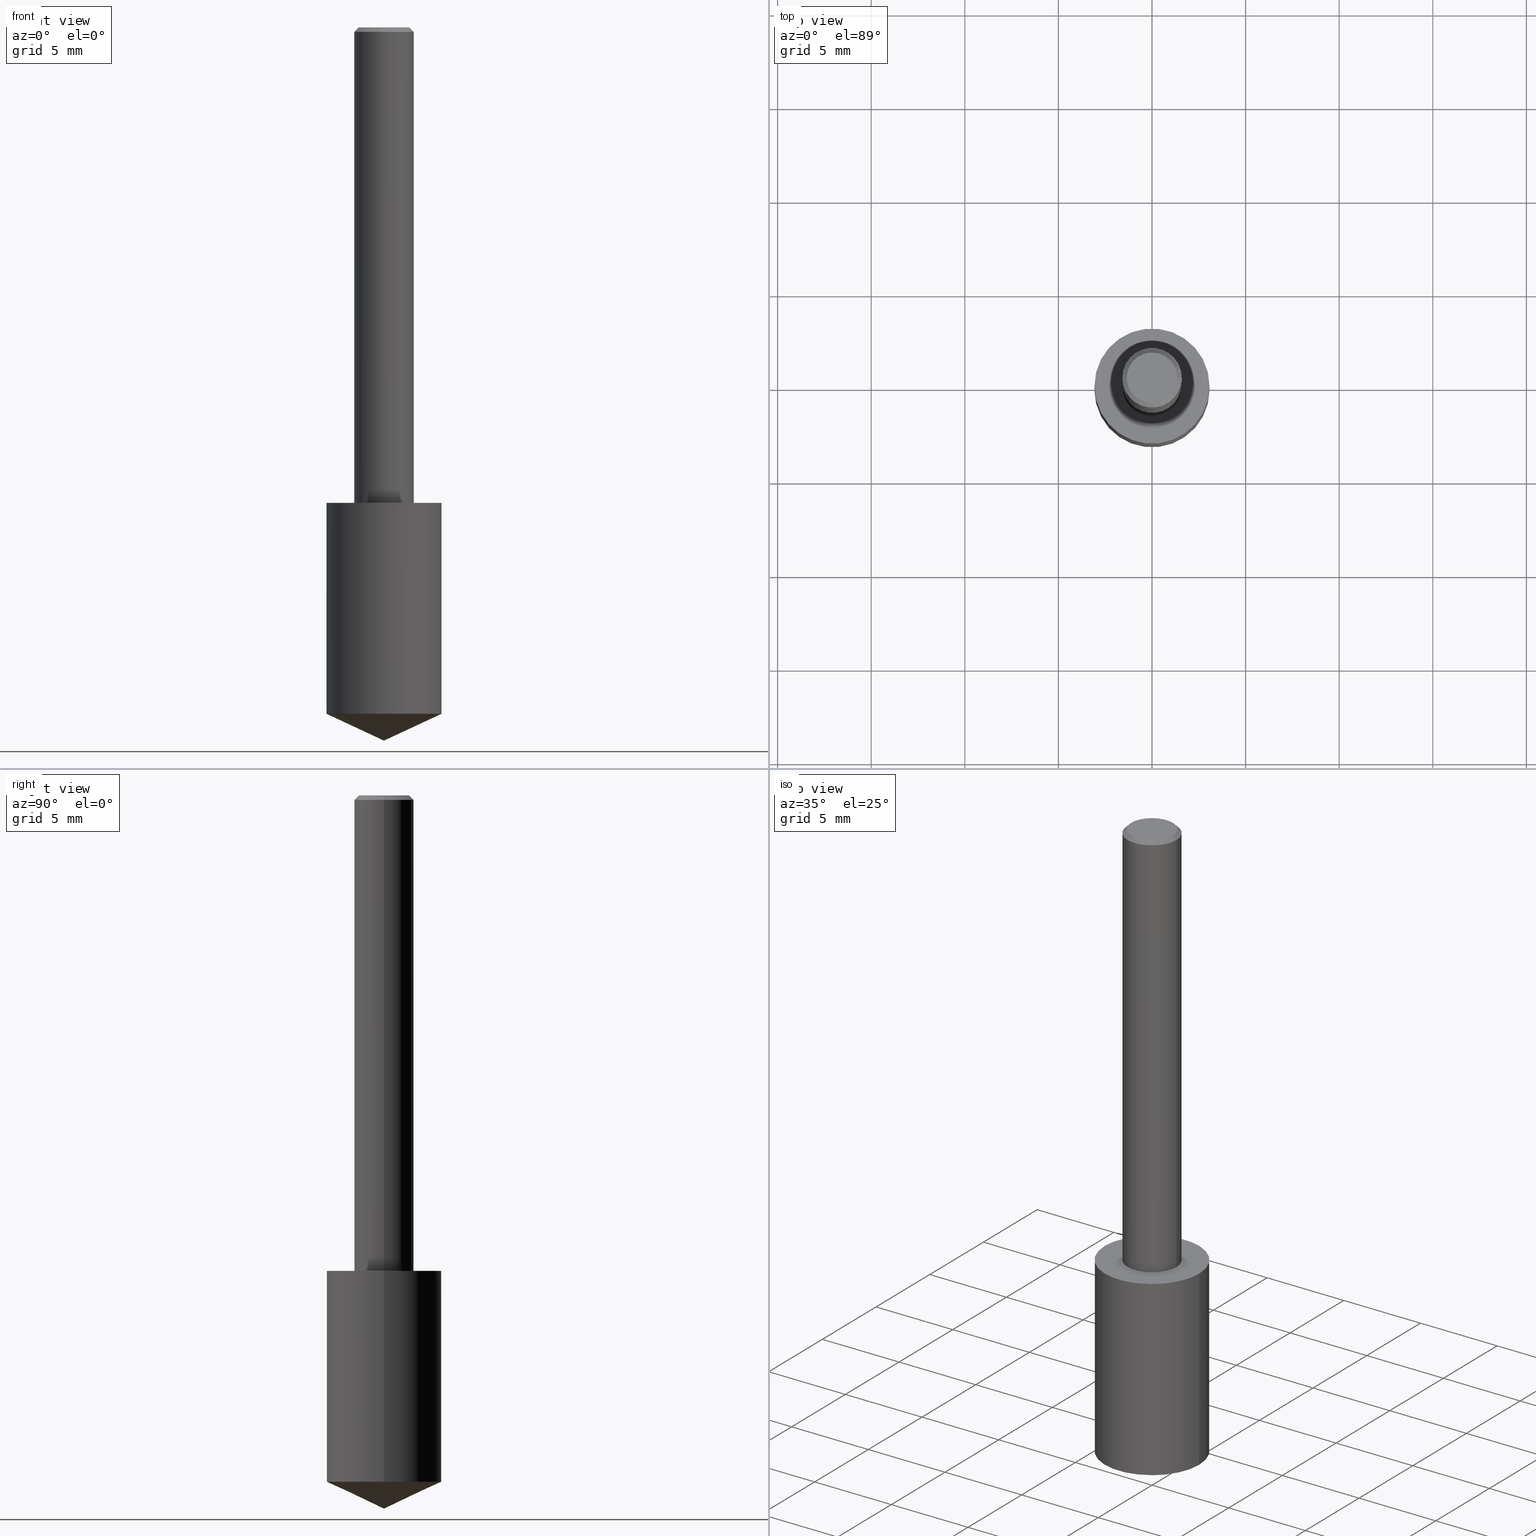
[diagram: canonical four-view strip — front | top / right | iso, engineering-drawing reading convention]
A machine part, canonical four-view strip (front | top / right | iso — engineering-drawing reading convention). The complete STEP part file that produces these views, byte-faithful:
ISO-10303-21;
HEADER;
FILE_DESCRIPTION (( 'STEP AP203' ),
    '1' );
FILE_NAME ('06168.STEP',
    '2024-04-30T18:32:37',
    ( '' ),
    ( '' ),
    'SwSTEP 2.0',
    'SolidWorks 2023',
    '' );
FILE_SCHEMA (( 'CONFIG_CONTROL_DESIGN' ));
ENDSEC;

DATA;
#1 = AXIS2_PLACEMENT_3D ( 'NONE', #12, #240, #264 ) ;
#2 = ORIENTED_EDGE ( 'NONE', *, *, #288, .F. ) ;
#3 = ORIENTED_EDGE ( 'NONE', *, *, #183, .T. ) ;
#4 = CARTESIAN_POINT ( 'NONE',  ( 0.06250000000000006939, -4.364351673553921624E-16, 3.047610484872463374E-30 ) ) ;
#5 = FACE_OUTER_BOUND ( 'NONE', #161, .T. ) ;
#6 =( GEOMETRIC_REPRESENTATION_CONTEXT ( 3 ) GLOBAL_UNCERTAINTY_ASSIGNED_CONTEXT ( ( #178 ) ) GLOBAL_UNIT_ASSIGNED_CONTEXT ( ( #270, #253, #273 ) ) REPRESENTATION_CONTEXT ( 'NONE', 'WORKASPACE' ) );
#7 = ADVANCED_FACE ( 'NONE', ( #297 ), #56, .F. ) ;
#8 = VERTEX_POINT ( 'NONE', #217 ) ;
#9 = DIRECTION ( 'NONE',  ( 1.000000000000000000, -6.982962677686266711E-15, 0.000000000000000000 ) ) ;
#10 = ORIENTED_EDGE ( 'NONE', *, *, #84, .T. ) ;
#11 = LINE ( 'NONE', #108, #229 ) ;
#12 = CARTESIAN_POINT ( 'NONE',  ( 3.530164951551601858E-29, -5.040139960160841539E-15, -1.443553457980337740 ) ) ;
#13 = AXIS2_PLACEMENT_3D ( 'NONE', #167, #173, #220 ) ;
#14 = ADVANCED_FACE ( 'NONE', ( #269 ), #81, .F. ) ;
#15 = DIRECTION ( 'NONE',  ( 1.000000000000000000, -6.982962677686265922E-15, 4.876176775795935793E-29 ) ) ;
#16 = PERSON_AND_ORGANIZATION ( #96, #286 ) ;
#17 = CYLINDRICAL_SURFACE ( 'NONE', #128, 0.06250000000000006939 ) ;
#18 = DIRECTION ( 'NONE',  ( 1.000000000000000000, 0.000000000000000000, 0.000000000000000000 ) ) ;
#19 = AXIS2_PLACEMENT_3D ( 'NONE', #34, #192, #58 ) ;
#20 = CC_DESIGN_APPROVAL ( #30, ( #296 ) ) ;
#21 = ORIENTED_EDGE ( 'NONE', *, *, #80, .F. ) ;
#22 = EDGE_CURVE ( 'NONE', #234, #8, #174, .T. ) ;
#23 = DATE_AND_TIME ( #337, #69 ) ;
#24 = CARTESIAN_POINT ( 'NONE',  ( 0.000000000000000000, 0.000000000000000000, 0.000000000000000000 ) ) ;
#25 = AXIS2_PLACEMENT_3D ( 'NONE', #160, #268, #188 ) ;
#26 = AXIS2_PLACEMENT_3D ( 'NONE', #141, #242, #82 ) ;
#27 = CARTESIAN_POINT ( 'NONE',  ( 0.06250000000000000000, -4.615137624123754923E-16, -0.009375000000000067307 ) ) ;
#28 = ORIENTED_EDGE ( 'NONE', *, *, #324, .T. ) ;
#29 = FACE_OUTER_BOUND ( 'NONE', #168, .T. ) ;
#30 = APPROVAL ( #126, 'UNSPECIFIED' ) ;
#31 = DIRECTION ( 'NONE',  ( -2.445468806185136877E-29, 3.491481338843145188E-15, 1.000000000000000000 ) ) ;
#32 = CARTESIAN_POINT ( 'NONE',  ( -0.1210499999999999909, -3.405698667864392547E-15, -1.000000000000000222 ) ) ;
#33 = CARTESIAN_POINT ( 'NONE',  ( 3.233423890070707962E-29, -2.363084811100782083E-15, -1.000000000000000222 ) ) ;
#34 = CARTESIAN_POINT ( 'NONE',  ( -3.743544432386672853E-50, 5.344789307371238476E-36, 1.530808498934197599E-21 ) ) ;
#35 = ADVANCED_FACE ( 'NONE', ( #331 ), #86, .T. ) ;
#36 = VECTOR ( 'NONE', #213, 39.37007874015748143 ) ;
#37 = COORDINATED_UNIVERSAL_TIME_OFFSET ( 5, 0, .BEHIND. ) ;
#38 = DIRECTION ( 'NONE',  ( -2.445468806185136597E-29, 3.491481338843145583E-15, 1.000000000000000000 ) ) ;
#39 = PERSON_AND_ORGANIZATION ( #96, #286 ) ;
#40 = ADVANCED_FACE ( 'NONE', ( #172 ), #274, .T. ) ;
#41 = COORDINATED_UNIVERSAL_TIME_OFFSET ( 5, 0, .BEHIND. ) ;
#42 = AXIS2_PLACEMENT_3D ( 'NONE', #162, #138, #321 ) ;
#43 = APPROVAL_DATE_TIME ( #150, #186 ) ;
#44 = CARTESIAN_POINT ( 'NONE',  ( 2.292627005798582375E-31, -3.273263755165472650E-17, -0.009375000000000067307 ) ) ;
#45 = AXIS2_PLACEMENT_3D ( 'NONE', #335, #147, #18 ) ;
#46 = LOCAL_TIME ( 14, 32, 37.00000000000000000, #222 ) ;
#47 = APPROVAL_DATE_TIME ( #284, #30 ) ;
#48 = DIMENSIONAL_EXPONENTS ( 1.000000000000000000, 0.000000000000000000, 0.000000000000000000, 0.000000000000000000, 0.000000000000000000, 0.000000000000000000, 0.000000000000000000 ) ;
#49 = ORIENTED_EDGE ( 'NONE', *, *, #97, .T. ) ;
#50 = ORIENTED_EDGE ( 'NONE', *, *, #152, .T. ) ;
#51 = CARTESIAN_POINT ( 'NONE',  ( 0.05312499999999999861, -4.129888592719939842E-16, 3.061617000609493422E-21 ) ) ;
#52 = ORIENTED_EDGE ( 'NONE', *, *, #262, .F. ) ;
#53 = CARTESIAN_POINT ( 'NONE',  ( -0.1210499999999999909, -2.631369357205545161E-15, -1.000000000000000222 ) ) ;
#54 = VERTEX_POINT ( 'NONE', #148 ) ;
#55 = FACE_OUTER_BOUND ( 'NONE', #285, .T. ) ;
#56 = PLANE ( 'NONE',  #277 ) ;
#57 = DIRECTION ( 'NONE',  ( 1.000000000000000000, -6.982962677686266711E-15, 0.000000000000000000 ) ) ;
#58 = DIRECTION ( 'NONE',  ( -1.000000000000000000, 6.982962677686265922E-15, -4.876176775795935793E-29 ) ) ;
#59 = APPROVAL_ROLE ( '' ) ;
#60 = CIRCLE ( 'NONE', #26, 0.05312499999999999861 ) ;
#61 = CC_DESIGN_SECURITY_CLASSIFICATION ( #296, ( #333 ) ) ;
#62 = DIRECTION ( 'NONE',  ( 1.000000000000000000, -6.982962677686268288E-15, 0.000000000000000000 ) ) ;
#63 = APPROVAL_DATE_TIME ( #305, #244 ) ;
#64 = ADVANCED_FACE ( 'NONE', ( #249 ), #17, .T. ) ;
#65 = DIRECTION ( 'NONE',  ( -2.445468806185136597E-29, 3.491481338843145583E-15, 1.000000000000000000 ) ) ;
#66 = SECURITY_CLASSIFICATION_LEVEL ( 'unclassified' ) ;
#67 = MECHANICAL_CONTEXT ( 'NONE', #298, 'mechanical' ) ;
#68 = VECTOR ( 'NONE', #312, 39.37007874015748143 ) ;
#69 = LOCAL_TIME ( 14, 32, 37.00000000000000000, #41 ) ;
#70 = FACE_OUTER_BOUND ( 'NONE', #248, .T. ) ;
#71 = EDGE_CURVE ( 'NONE', #306, #54, #340, .T. ) ;
#72 = EDGE_LOOP ( 'NONE', ( #290, #100, #50, #225 ) ) ;
#73 = LOCAL_TIME ( 14, 32, 37.00000000000000000, #131 ) ;
#74 = FACE_OUTER_BOUND ( 'NONE', #187, .T. ) ;
#75 = LINE ( 'NONE', #4, #278 ) ;
#76 = DIRECTION ( 'NONE',  ( -2.445468806185136877E-29, 3.491481338843145188E-15, 1.000000000000000000 ) ) ;
#77 = ORIENTED_EDGE ( 'NONE', *, *, #324, .F. ) ;
#78 = CIRCLE ( 'NONE', #25, 0.1210499999999999909 ) ;
#79 = DIRECTION ( 'NONE',  ( 1.000000000000000000, -6.982962677686264344E-15, 0.000000000000000000 ) ) ;
#80 = EDGE_CURVE ( 'NONE', #165, #322, #170, .T. ) ;
#81 = PLANE ( 'NONE',  #19 ) ;
#82 = DIRECTION ( 'NONE',  ( 1.000000000000000000, -6.982962677686266711E-15, 4.876176628004948512E-29 ) ) ;
#83 = EDGE_LOOP ( 'NONE', ( #3, #195, #130, #239 ) ) ;
#84 = EDGE_CURVE ( 'NONE', #107, #105, #216, .T. ) ;
#85 = PERSON_AND_ORGANIZATION_ROLE ( 'creator' ) ;
#86 = CYLINDRICAL_SURFACE ( 'NONE', #189, 0.1210499999999999909 ) ;
#87 = EDGE_CURVE ( 'NONE', #107, #306, #151, .T. ) ;
#88 = LOCAL_TIME ( 14, 32, 37.00000000000000000, #169 ) ;
#89 = ORIENTED_EDGE ( 'NONE', *, *, #258, .F. ) ;
#90 = APPROVAL_ROLE ( '' ) ;
#91 = DIRECTION ( 'NONE',  ( 1.000000000000000000, -6.982962677686266711E-15, 0.000000000000000000 ) ) ;
#92 = EDGE_LOOP ( 'NONE', ( #10, #133 ) ) ;
#93 = PERSON_AND_ORGANIZATION_ROLE ( 'creator' ) ;
#94 = CALENDAR_DATE ( 2024, 30, 4 ) ;
#95 = ADVANCED_FACE ( 'NONE', ( #70 ), #179, .T. ) ;
#96 = PERSON ( 'UNSPECIFIED', 'UNSPECIFIED', 'UNSPECIFIED', ('UNSPECIFIED'), ('UNSPECIFIED'), ('UNSPECIFIED') ) ;
#97 = EDGE_CURVE ( 'NONE', #208, #103, #123, .T. ) ;
#98 = CC_DESIGN_PERSON_AND_ORGANIZATION_ASSIGNMENT ( #251, #176, ( #221 ) ) ;
#99 = ORIENTED_EDGE ( 'NONE', *, *, #22, .T. ) ;
#100 = ORIENTED_EDGE ( 'NONE', *, *, #80, .T. ) ;
#101 = CARTESIAN_POINT ( 'NONE',  ( 2.292627005798582375E-31, -3.273263755165472650E-17, -0.009375000000000067307 ) ) ;
#102 = VECTOR ( 'NONE', #76, 39.37007874015748143 ) ;
#103 = VERTEX_POINT ( 'NONE', #142 ) ;
#104 = CARTESIAN_POINT ( 'NONE',  ( 2.445468806185136877E-29, -3.491481338843145977E-15, -1.000000000000000222 ) ) ;
#105 = VERTEX_POINT ( 'NONE', #51 ) ;
#106 = LINE ( 'NONE', #27, #36 ) ;
#107 = VERTEX_POINT ( 'NONE', #193 ) ;
#108 = CARTESIAN_POINT ( 'NONE',  ( 3.668203209277704895E-29, -5.237222008264718177E-15, -1.500000000000000222 ) ) ;
#109 = ADVANCED_FACE ( 'NONE', ( #289 ), #250, .T. ) ;
#110 = MANIFOLD_SOLID_BREP ( 'Body-Move/Copy2[1]', #255 ) ;
#111 = ORIENTED_EDGE ( 'NONE', *, *, #84, .F. ) ;
#112 = AXIS2_PLACEMENT_3D ( 'NONE', #236, #326, #79 ) ;
#113 = PLANE ( 'NONE',  #233 ) ;
#114 = PRODUCT_DEFINITION_SHAPE ( 'NONE', 'NONE',  #283 ) ;
#115 = PERSON_AND_ORGANIZATION ( #96, #286 ) ;
#116 = DIRECTION ( 'NONE',  ( -2.445468806185136877E-29, 3.491481338843145188E-15, 1.000000000000000000 ) ) ;
#117 = PERSON_AND_ORGANIZATION ( #96, #286 ) ;
#118 = CARTESIAN_POINT ( 'NONE',  ( 0.000000000000000000, 0.000000000000000000, 0.000000000000000000 ) ) ;
#119 = APPROVAL_STATUS ( 'not_yet_approved' ) ;
#120 = APPROVAL_PERSON_ORGANIZATION ( #16, #244, #59 ) ;
#121 = DIRECTION ( 'NONE',  ( -2.445468806185136597E-29, 3.491481338843145583E-15, 1.000000000000000000 ) ) ;
#122 = ORIENTED_EDGE ( 'NONE', *, *, #183, .F. ) ;
#123 = LINE ( 'NONE', #336, #259 ) ;
#124 = APPLICATION_CONTEXT ( 'configuration controlled 3d designs of mechanical parts and assemblies' ) ;
#125 = AXIS2_PLACEMENT_3D ( 'NONE', #317, #134, #257 ) ;
#126 = APPROVAL_STATUS ( 'not_yet_approved' ) ;
#127 = SHAPE_DEFINITION_REPRESENTATION ( #114, #156 ) ;
#128 = AXIS2_PLACEMENT_3D ( 'NONE', #118, #65, #334 ) ;
#129 = APPROVAL_PERSON_ORGANIZATION ( #308, #30, #203 ) ;
#130 = ORIENTED_EDGE ( 'NONE', *, *, #194, .F. ) ;
#131 = COORDINATED_UNIVERSAL_TIME_OFFSET ( 5, 0, .BEHIND. ) ;
#132 = DIRECTION ( 'NONE',  ( -2.445468806185136597E-29, 3.491481338843145583E-15, 1.000000000000000000 ) ) ;
#133 = ORIENTED_EDGE ( 'NONE', *, *, #262, .T. ) ;
#134 = DIRECTION ( 'NONE',  ( -2.445468806185136597E-29, 3.491481338843145583E-15, 1.000000000000000000 ) ) ;
#135 = CLOSED_SHELL ( 'NONE', ( #180, #95, #7, #64, #109, #14 ) ) ;
#136 = LOCAL_TIME ( 14, 32, 37.00000000000000000, #37 ) ;
#137 = EDGE_LOOP ( 'NONE', ( #287, #111, #157, #212 ) ) ;
#138 = DIRECTION ( 'NONE',  ( 2.445468806185136597E-29, -3.491481338843145583E-15, -1.000000000000000000 ) ) ;
#139 = EDGE_CURVE ( 'NONE', #182, #8, #78, .T. ) ;
#140 = ORIENTED_EDGE ( 'NONE', *, *, #267, .F. ) ;
#141 = CARTESIAN_POINT ( 'NONE',  ( -7.487088864773345706E-50, 1.068957861474247695E-35, 3.061616997868395197E-21 ) ) ;
#142 = CARTESIAN_POINT ( 'NONE',  ( -0.1210500000000000187, -4.180027978523240328E-15, -1.443553457980337740 ) ) ;
#143 = CARTESIAN_POINT ( 'NONE',  ( 0.1210499999999999909, -4.336768970977069559E-15, -1.000000000000000222 ) ) ;
#144 = AXIS2_PLACEMENT_3D ( 'NONE', #204, #227, #206 ) ;
#145 = DATE_AND_TIME ( #94, #136 ) ;
#146 = ORIENTED_EDGE ( 'NONE', *, *, #97, .F. ) ;
#147 = DIRECTION ( 'NONE',  ( 0.000000000000000000, 0.000000000000000000, 1.000000000000000000 ) ) ;
#148 = CARTESIAN_POINT ( 'NONE',  ( 0.06250000000000000000, -4.691678049070464390E-16, -0.009375000000000067307 ) ) ;
#149 = PERSON_AND_ORGANIZATION_ROLE ( 'design_supplier' ) ;
#150 = DATE_AND_TIME ( #302, #88 ) ;
#151 = LINE ( 'NONE', #252, #68 ) ;
#152 = EDGE_CURVE ( 'NONE', #322, #54, #75, .T. ) ;
#153 =( LENGTH_UNIT ( ) NAMED_UNIT ( * ) SI_UNIT ( $, .METRE. ) );
#154 = DIRECTION ( 'NONE',  ( -2.445468806185136597E-29, 3.491481338843145583E-15, 1.000000000000000000 ) ) ;
#155 = DIRECTION ( 'NONE',  ( -2.445468806185136597E-29, 3.491481338843145583E-15, 1.000000000000000000 ) ) ;
#156 = ADVANCED_BREP_SHAPE_REPRESENTATION ( '06168', ( #110, #228, #45 ), #6 ) ;
#157 = ORIENTED_EDGE ( 'NONE', *, *, #87, .T. ) ;
#158 = CIRCLE ( 'NONE', #112, 0.1210499999999999909 ) ;
#159 = ORIENTED_EDGE ( 'NONE', *, *, #288, .T. ) ;
#160 = CARTESIAN_POINT ( 'NONE',  ( 2.445468806185136877E-29, -3.491481338843145977E-15, -1.000000000000000222 ) ) ;
#161 = EDGE_LOOP ( 'NONE', ( #52, #292, #325, #190 ) ) ;
#162 = CARTESIAN_POINT ( 'NONE',  ( 2.292627005798582375E-31, -3.273263755165472650E-17, -0.009375000000000067307 ) ) ;
#163 = ADVANCED_FACE ( 'NONE', ( #74 ), #265, .T. ) ;
#164 = VECTOR ( 'NONE', #116, 39.37007874015748143 ) ;
#165 = VERTEX_POINT ( 'NONE', #237 ) ;
#166 = DIRECTION ( 'NONE',  ( -1.000000000000000000, 6.982962677686265922E-15, -4.876176775795935793E-29 ) ) ;
#167 = CARTESIAN_POINT ( 'NONE',  ( 2.445468806185137438E-29, -3.491481338843146371E-15, -1.000000000000000222 ) ) ;
#168 = EDGE_LOOP ( 'NONE', ( #140, #49, #122 ) ) ;
#169 = COORDINATED_UNIVERSAL_TIME_OFFSET ( 5, 0, .BEHIND. ) ;
#170 = CIRCLE ( 'NONE', #144, 0.06250000000000012490 ) ;
#171 = ADVANCED_FACE ( 'NONE', ( #29 ), #294, .T. ) ;
#172 = FACE_OUTER_BOUND ( 'NONE', #83, .T. ) ;
#173 = DIRECTION ( 'NONE',  ( -2.445468806185136597E-29, 3.491481338843145583E-15, 1.000000000000000000 ) ) ;
#174 = LINE ( 'NONE', #143, #164 ) ;
#175 = PERSON_AND_ORGANIZATION ( #96, #286 ) ;
#176 = PERSON_AND_ORGANIZATION_ROLE ( 'design_owner' ) ;
#177 = AXIS2_PLACEMENT_3D ( 'NONE', #266, #132, #57 ) ;
#178 = UNCERTAINTY_MEASURE_WITH_UNIT (LENGTH_MEASURE( 1.000000000000000082E-05 ), #270, 'distance_accuracy_value', 'NONE');
#179 = CYLINDRICAL_SURFACE ( 'NONE', #281, 0.06250000000000006939 ) ;
#180 = ADVANCED_FACE ( 'NONE', ( #5 ), #210, .T. ) ;
#181 = AXIS2_PLACEMENT_3D ( 'NONE', #254, #230, #314 ) ;
#182 = VERTEX_POINT ( 'NONE', #32 ) ;
#183 = EDGE_CURVE ( 'NONE', #234, #103, #256, .T. ) ;
#184 = DIRECTION ( 'NONE',  ( 2.445468806185136597E-29, -3.491481338843145583E-15, -1.000000000000000000 ) ) ;
#185 = DIRECTION ( 'NONE',  ( -1.000000000000000000, 6.982962677686266711E-15, 0.000000000000000000 ) ) ;
#186 = APPROVAL ( #279, 'UNSPECIFIED' ) ;
#187 = EDGE_LOOP ( 'NONE', ( #146, #235, #2 ) ) ;
#188 = DIRECTION ( 'NONE',  ( 1.000000000000000000, -6.982962677686268288E-15, 0.000000000000000000 ) ) ;
#189 = AXIS2_PLACEMENT_3D ( 'NONE', #197, #304, #62 ) ;
#190 = ORIENTED_EDGE ( 'NONE', *, *, #87, .F. ) ;
#191 = CARTESIAN_POINT ( 'NONE',  ( -0.06250000000000000000, -1.318017778347336672E-15, -0.009375000000000067307 ) ) ;
#192 = DIRECTION ( 'NONE',  ( 2.438088387897960049E-29, -3.491481338843145188E-15, -1.000000000000000000 ) ) ;
#193 = CARTESIAN_POINT ( 'NONE',  ( -0.05312499999999999861, 3.873362110279099094E-16, 3.061616995216862494E-21 ) ) ;
#194 = EDGE_CURVE ( 'NONE', #8, #182, #271, .T. ) ;
#195 = ORIENTED_EDGE ( 'NONE', *, *, #205, .T. ) ;
#196 = LENGTH_MEASURE_WITH_UNIT ( LENGTH_MEASURE( 0.02539999999999999897 ), #153 );
#197 = CARTESIAN_POINT ( 'NONE',  ( 2.445468806185137438E-29, -3.491481338843146371E-15, -1.000000000000000222 ) ) ;
#198 = VECTOR ( 'NONE', #31, 39.37007874015748143 ) ;
#199 = APPLICATION_PROTOCOL_DEFINITION ( 'international standard', 'config_control_design', 1994, #124 ) ;
#200 = CARTESIAN_POINT ( 'NONE',  ( 2.445468806185137438E-29, -3.491481338843146371E-15, -1.000000000000000222 ) ) ;
#201 = EDGE_CURVE ( 'NONE', #105, #54, #106, .T. ) ;
#202 = APPLICATION_PROTOCOL_DEFINITION ( 'international standard', 'config_control_design', 1994, #298 ) ;
#203 = APPROVAL_ROLE ( '' ) ;
#204 = CARTESIAN_POINT ( 'NONE',  ( 2.445468806185137438E-29, -3.491481338843146371E-15, -1.000000000000000222 ) ) ;
#205 = EDGE_CURVE ( 'NONE', #103, #182, #291, .T. ) ;
#206 = DIRECTION ( 'NONE',  ( 1.000000000000000000, -6.982962677686264344E-15, 0.000000000000000000 ) ) ;
#207 = AXIS2_PLACEMENT_3D ( 'NONE', #101, #184, #185 ) ;
#208 = VERTEX_POINT ( 'NONE', #323 ) ;
#209 = CARTESIAN_POINT ( 'NONE',  ( -0.06250000000000006939, 4.440892098500631092E-16, -3.074334431409319267E-30 ) ) ;
#210 = CONICAL_SURFACE ( 'NONE', #207, 0.06250000000000000000, 0.7853981633974447263 ) ;
#211 = DIRECTION ( 'NONE',  ( -2.445468806185136597E-29, 3.491481338843145583E-15, 1.000000000000000000 ) ) ;
#212 = ORIENTED_EDGE ( 'NONE', *, *, #71, .T. ) ;
#213 = DIRECTION ( 'NONE',  ( 0.7071067811865450192, -7.319954787623246579E-15, -0.7071067811865500152 ) ) ;
#214 = ORIENTED_EDGE ( 'NONE', *, *, #139, .T. ) ;
#215 = DIRECTION ( 'NONE',  ( 0.9063077870366502697, -4.853149677051385890E-15, 0.4226182617406986641 ) ) ;
#216 = CIRCLE ( 'NONE', #181, 0.05312499999999999861 ) ;
#217 = CARTESIAN_POINT ( 'NONE',  ( 0.1210499999999999909, -4.336768970977068771E-15, -1.000000000000000222 ) ) ;
#218 = DIRECTION ( 'NONE',  ( 2.438088387897960049E-29, -3.491481338843145188E-15, -1.000000000000000000 ) ) ;
#219 = CC_DESIGN_DATE_AND_TIME_ASSIGNMENT ( #23, #226, ( #296 ) ) ;
#220 = DIRECTION ( 'NONE',  ( 1.000000000000000000, -6.982962677686264344E-15, 0.000000000000000000 ) ) ;
#221 = PRODUCT ( '06168', '06168', '', ( #67 ) ) ;
#222 = COORDINATED_UNIVERSAL_TIME_OFFSET ( 5, 0, .BEHIND. ) ;
#223 = DIRECTION ( 'NONE',  ( 1.000000000000000000, -6.982962677686268288E-15, 0.000000000000000000 ) ) ;
#224 = DIRECTION ( 'NONE',  ( 1.000000000000000000, -6.982962677686266711E-15, 4.876176775795935793E-29 ) ) ;
#225 = ORIENTED_EDGE ( 'NONE', *, *, #71, .F. ) ;
#226 = DATE_TIME_ROLE ( 'classification_date' ) ;
#227 = DIRECTION ( 'NONE',  ( -2.445468806185136597E-29, 3.491481338843145583E-15, 1.000000000000000000 ) ) ;
#228 = MANIFOLD_SOLID_BREP ( 'Body-Move/Copy2[2]', #135 ) ;
#229 = VECTOR ( 'NONE', #215, 39.37007874015748143 ) ;
#230 = DIRECTION ( 'NONE',  ( -2.445468806185136597E-29, 3.491481338843145583E-15, 1.000000000000000000 ) ) ;
#231 = CALENDAR_DATE ( 2024, 30, 4 ) ;
#232 = EDGE_CURVE ( 'NONE', #165, #306, #300, .T. ) ;
#233 = AXIS2_PLACEMENT_3D ( 'NONE', #33, #218, #166 ) ;
#234 = VERTEX_POINT ( 'NONE', #293 ) ;
#235 = ORIENTED_EDGE ( 'NONE', *, *, #267, .T. ) ;
#236 = CARTESIAN_POINT ( 'NONE',  ( 3.530164951551601858E-29, -5.040139960160841539E-15, -1.443553457980337740 ) ) ;
#237 = CARTESIAN_POINT ( 'NONE',  ( -0.06250000000000012490, -1.318017778347335489E-15, -1.000000000000000222 ) ) ;
#238 = APPROVAL_PERSON_ORGANIZATION ( #115, #186, #90 ) ;
#239 = ORIENTED_EDGE ( 'NONE', *, *, #22, .F. ) ;
#240 = DIRECTION ( 'NONE',  ( -2.445468806185136597E-29, 3.491481338843145583E-15, 1.000000000000000000 ) ) ;
#241 = ORIENTED_EDGE ( 'NONE', *, *, #152, .F. ) ;
#242 = DIRECTION ( 'NONE',  ( -2.445468806185136597E-29, 3.491481338843145583E-15, 1.000000000000000000 ) ) ;
#243 = DIRECTION ( 'NONE',  ( 1.000000000000000000, -6.982962677686268288E-15, 0.000000000000000000 ) ) ;
#244 = APPROVAL ( #119, 'UNSPECIFIED' ) ;
#245 = CIRCLE ( 'NONE', #177, 0.06250000000000000000 ) ;
#246 = DATE_TIME_ROLE ( 'creation_date' ) ;
#247 = ADVANCED_FACE ( 'NONE', ( #55 ), #113, .F. ) ;
#248 = EDGE_LOOP ( 'NONE', ( #28, #316, #89, #241 ) ) ;
#249 = FACE_OUTER_BOUND ( 'NONE', #72, .T. ) ;
#250 = CONICAL_SURFACE ( 'NONE', #42, 0.06250000000000000000, 0.7853981633974447263 ) ;
#251 = PERSON_AND_ORGANIZATION ( #96, #286 ) ;
#252 = CARTESIAN_POINT ( 'NONE',  ( -0.06250000000000000000, 4.037025298037369491E-16, -0.009375000000000067307 ) ) ;
#253 =( NAMED_UNIT ( * ) PLANE_ANGLE_UNIT ( ) SI_UNIT ( $, .RADIAN. ) );
#254 = CARTESIAN_POINT ( 'NONE',  ( -7.487088864773345706E-50, 1.068957861474247695E-35, 3.061616997868395197E-21 ) ) ;
#255 = CLOSED_SHELL ( 'NONE', ( #40, #171, #163, #35, #247 ) ) ;
#256 = CIRCLE ( 'NONE', #1, 0.1210499999999999909 ) ;
#257 = DIRECTION ( 'NONE',  ( 1.000000000000000000, -6.982962677686266711E-15, 0.000000000000000000 ) ) ;
#258 = EDGE_CURVE ( 'NONE', #54, #306, #245, .T. ) ;
#259 = VECTOR ( 'NONE', #339, 39.37007874015748143 ) ;
#260 = ORIENTED_EDGE ( 'NONE', *, *, #205, .F. ) ;
#261 = CARTESIAN_POINT ( 'NONE',  ( -9.261009624683002666E-28, 1.322226732217803884E-13, 37.87007874015748143 ) ) ;
#262 = EDGE_CURVE ( 'NONE', #105, #107, #60, .T. ) ;
#263 = ORIENTED_EDGE ( 'NONE', *, *, #139, .F. ) ;
#264 = DIRECTION ( 'NONE',  ( 1.000000000000000000, -6.982962677686264344E-15, 0.000000000000000000 ) ) ;
#265 = CONICAL_SURFACE ( 'NONE', #315, 84.42940631927417883, 1.134464013796315118 ) ;
#266 = CARTESIAN_POINT ( 'NONE',  ( 2.292627005798582375E-31, -3.273263755165472650E-17, -0.009375000000000067307 ) ) ;
#267 = EDGE_CURVE ( 'NONE', #208, #234, #11, .T. ) ;
#268 = DIRECTION ( 'NONE',  ( -2.445468806185136597E-29, 3.491481338843145583E-15, 1.000000000000000000 ) ) ;
#269 = FACE_OUTER_BOUND ( 'NONE', #92, .T. ) ;
#270 =( CONVERSION_BASED_UNIT ( 'INCH', #196 ) LENGTH_UNIT ( ) NAMED_UNIT ( #48 ) );
#271 = CIRCLE ( 'NONE', #327, 0.1210499999999999909 ) ;
#272 = ORIENTED_EDGE ( 'NONE', *, *, #194, .T. ) ;
#273 =( NAMED_UNIT ( * ) SI_UNIT ( $, .STERADIAN. ) SOLID_ANGLE_UNIT ( ) );
#274 = CYLINDRICAL_SURFACE ( 'NONE', #310, 0.1210499999999999909 ) ;
#275 = EDGE_LOOP ( 'NONE', ( #260, #159, #99, #263 ) ) ;
#276 = PERSON_AND_ORGANIZATION_ROLE ( 'classification_officer' ) ;
#277 = AXIS2_PLACEMENT_3D ( 'NONE', #301, #328, #15 ) ;
#278 = VECTOR ( 'NONE', #329, 39.37007874015748143 ) ;
#279 = APPROVAL_STATUS ( 'not_yet_approved' ) ;
#280 = CC_DESIGN_DATE_AND_TIME_ASSIGNMENT ( #145, #246, ( #283 ) ) ;
#281 = AXIS2_PLACEMENT_3D ( 'NONE', #24, #154, #224 ) ;
#282 = CC_DESIGN_APPROVAL ( #186, ( #283 ) ) ;
#283 = PRODUCT_DEFINITION ( 'UNKNOWN', '', #333, #320 ) ;
#284 = DATE_AND_TIME ( #231, #73 ) ;
#285 = EDGE_LOOP ( 'NONE', ( #272, #214 ) ) ;
#286 = ORGANIZATION ( 'UNSPECIFIED', 'UNSPECIFIED', '' ) ;
#287 = ORIENTED_EDGE ( 'NONE', *, *, #201, .F. ) ;
#288 = EDGE_CURVE ( 'NONE', #103, #234, #158, .T. ) ;
#289 = FACE_OUTER_BOUND ( 'NONE', #137, .T. ) ;
#290 = ORIENTED_EDGE ( 'NONE', *, *, #232, .F. ) ;
#291 = LINE ( 'NONE', #53, #198 ) ;
#292 = ORIENTED_EDGE ( 'NONE', *, *, #201, .T. ) ;
#293 = CARTESIAN_POINT ( 'NONE',  ( 0.1210500000000000187, -5.885427592294764333E-15, -1.443553457980337740 ) ) ;
#294 = CONICAL_SURFACE ( 'NONE', #125, 84.42940631927417883, 1.134464013796315118 ) ;
#295 = CC_DESIGN_PERSON_AND_ORGANIZATION_ASSIGNMENT ( #117, #85, ( #283 ) ) ;
#296 = SECURITY_CLASSIFICATION ( '', '', #66 ) ;
#297 = FACE_OUTER_BOUND ( 'NONE', #319, .T. ) ;
#298 = APPLICATION_CONTEXT ( 'configuration controlled 3d designs of mechanical parts and assemblies' ) ;
#299 = CARTESIAN_POINT ( 'NONE',  ( 0.06250000000000012490, -3.927916506198539224E-15, -1.000000000000000222 ) ) ;
#300 = LINE ( 'NONE', #209, #102 ) ;
#301 = CARTESIAN_POINT ( 'NONE',  ( 2.445468806185137438E-29, -3.491481338843146371E-15, -1.000000000000000222 ) ) ;
#302 = CALENDAR_DATE ( 2024, 30, 4 ) ;
#303 = CIRCLE ( 'NONE', #13, 0.06250000000000012490 ) ;
#304 = DIRECTION ( 'NONE',  ( -2.445468806185136597E-29, 3.491481338843145583E-15, 1.000000000000000000 ) ) ;
#305 = DATE_AND_TIME ( #332, #46 ) ;
#306 = VERTEX_POINT ( 'NONE', #191 ) ;
#307 = PERSON_AND_ORGANIZATION ( #96, #286 ) ;
#308 = PERSON_AND_ORGANIZATION ( #96, #286 ) ;
#309 = CC_DESIGN_PERSON_AND_ORGANIZATION_ASSIGNMENT ( #39, #93, ( #333 ) ) ;
#310 = AXIS2_PLACEMENT_3D ( 'NONE', #200, #38, #223 ) ;
#311 = CC_DESIGN_APPROVAL ( #244, ( #333 ) ) ;
#312 = DIRECTION ( 'NONE',  ( -0.7071067811865450192, 2.468850131082230634E-15, -0.7071067811865500152 ) ) ;
#313 = CC_DESIGN_PERSON_AND_ORGANIZATION_ASSIGNMENT ( #307, #149, ( #333 ) ) ;
#314 = DIRECTION ( 'NONE',  ( 1.000000000000000000, -6.982962677686266711E-15, 4.876176628004948512E-29 ) ) ;
#315 = AXIS2_PLACEMENT_3D ( 'NONE', #261, #155, #9 ) ;
#316 = ORIENTED_EDGE ( 'NONE', *, *, #232, .T. ) ;
#317 = CARTESIAN_POINT ( 'NONE',  ( -9.261009624683002666E-28, 1.322226732217803884E-13, 37.87007874015748143 ) ) ;
#318 = AXIS2_PLACEMENT_3D ( 'NONE', #44, #121, #91 ) ;
#319 = EDGE_LOOP ( 'NONE', ( #77, #21 ) ) ;
#320 = DESIGN_CONTEXT ( 'detailed design', #124, 'design' ) ;
#321 = DIRECTION ( 'NONE',  ( -1.000000000000000000, 6.982962677686266711E-15, 0.000000000000000000 ) ) ;
#322 = VERTEX_POINT ( 'NONE', #299 ) ;
#323 = CARTESIAN_POINT ( 'NONE',  ( 3.668203209277704895E-29, -5.237222008264718177E-15, -1.500000000000000222 ) ) ;
#324 = EDGE_CURVE ( 'NONE', #322, #165, #303, .T. ) ;
#325 = ORIENTED_EDGE ( 'NONE', *, *, #258, .T. ) ;
#326 = DIRECTION ( 'NONE',  ( -2.445468806185136597E-29, 3.491481338843145583E-15, 1.000000000000000000 ) ) ;
#327 = AXIS2_PLACEMENT_3D ( 'NONE', #104, #211, #243 ) ;
#328 = DIRECTION ( 'NONE',  ( -2.438088387897960049E-29, 3.491481338843145188E-15, 1.000000000000000000 ) ) ;
#329 = DIRECTION ( 'NONE',  ( -2.445468806185136877E-29, 3.491481338843145188E-15, 1.000000000000000000 ) ) ;
#330 = PRODUCT_RELATED_PRODUCT_CATEGORY ( 'detail', '', ( #221 ) ) ;
#331 = FACE_OUTER_BOUND ( 'NONE', #275, .T. ) ;
#332 = CALENDAR_DATE ( 2024, 30, 4 ) ;
#333 = PRODUCT_DEFINITION_FORMATION_WITH_SPECIFIED_SOURCE ( 'ANY', '', #221, .NOT_KNOWN. ) ;
#334 = DIRECTION ( 'NONE',  ( 1.000000000000000000, -6.982962677686266711E-15, 4.876176775795935793E-29 ) ) ;
#335 = CARTESIAN_POINT ( 'NONE',  ( 0.000000000000000000, 0.000000000000000000, 0.000000000000000000 ) ) ;
#336 = CARTESIAN_POINT ( 'NONE',  ( 3.668203209277704895E-29, -5.237222008264718177E-15, -1.500000000000000222 ) ) ;
#337 = CALENDAR_DATE ( 2024, 30, 4 ) ;
#338 = CC_DESIGN_PERSON_AND_ORGANIZATION_ASSIGNMENT ( #175, #276, ( #296 ) ) ;
#339 = DIRECTION ( 'NONE',  ( -0.9063077870366502697, 7.915267918739016209E-15, 0.4226182617406986641 ) ) ;
#340 = CIRCLE ( 'NONE', #318, 0.06250000000000000000 ) ;
ENDSEC;
END-ISO-10303-21;
